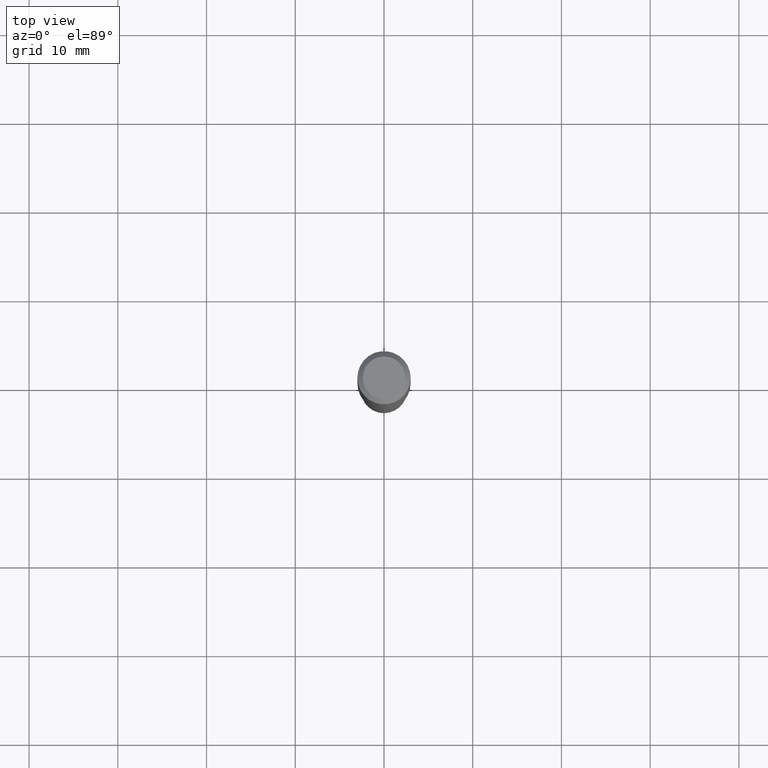
[diagram: clean part render]
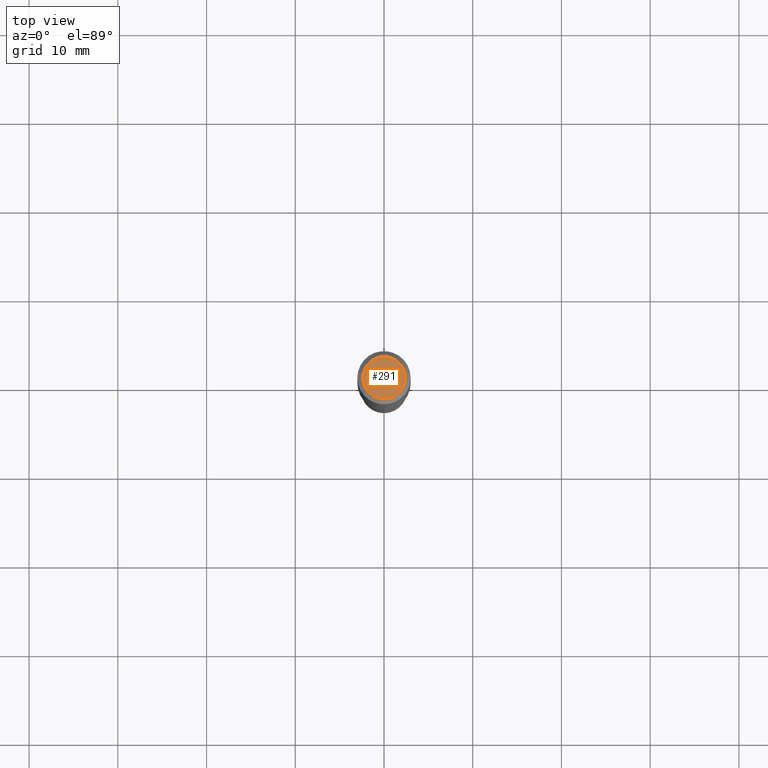
[diagram: same view with one face highlighted and labeled with its STEP entity id]
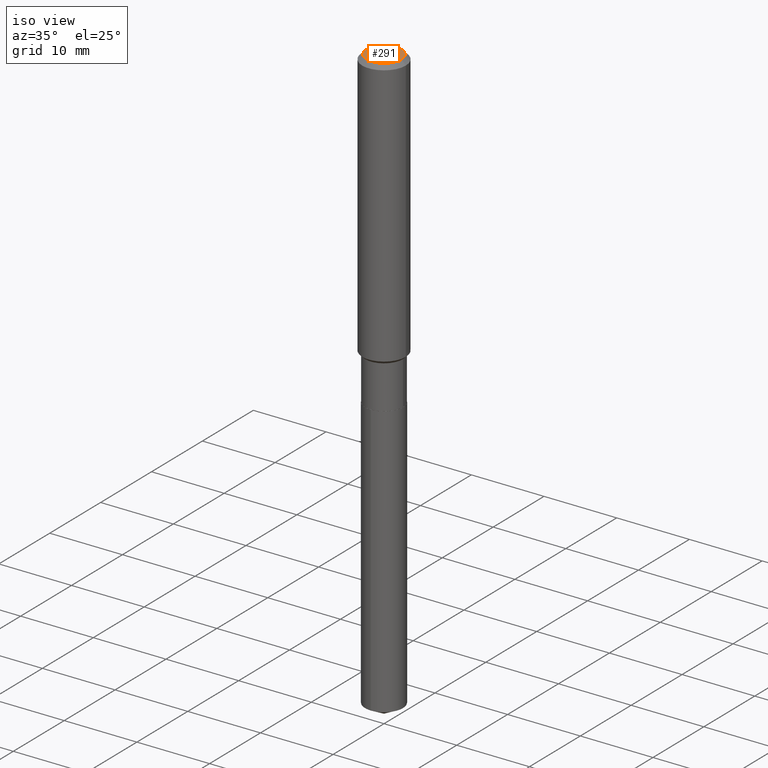
[diagram: same view with one face highlighted and labeled with its STEP entity id]
A machine part, top view. The second image highlights one B-rep face of the part: STEP entity #291.
A second angle (iso view) of the same face is appended — the face is thin or edge-on in the first view.
In plain terms, the highlighted planar face has unit normal (0, -0, -1).
Its self-contained STEP definition (entity closure, byte-faithful):
#20 = VERTEX_POINT ( 'NONE', #314 ) ;
#25 = AXIS2_PLACEMENT_3D ( 'NONE', #160, #285, #323 ) ;
#27 = ORIENTED_EDGE ( 'NONE', *, *, #296, .T. ) ;
#74 = CARTESIAN_POINT ( 'NONE',  ( 4.716267017698007905E-46, -6.733579360998555036E-32, -1.928573779297252010E-17 ) ) ;
#129 = DIRECTION ( 'NONE',  ( -2.445468806185136597E-29, 3.491481338843145583E-15, 1.000000000000000000 ) ) ;
#132 = CARTESIAN_POINT ( 'NONE',  ( -0.09447999999999998066, 7.009847083995354710E-16, -1.928573779297727792E-17 ) ) ;
#156 = PLANE ( 'NONE',  #25 ) ;
#158 = FACE_OUTER_BOUND ( 'NONE', #319, .T. ) ;
#160 = CARTESIAN_POINT ( 'NONE',  ( 2.358133508849003952E-46, -3.366789680499277518E-32, -9.642868896486260050E-18 ) ) ;
#163 = AXIS2_PLACEMENT_3D ( 'NONE', #486, #246, #383 ) ;
#229 = VERTEX_POINT ( 'NONE', #132 ) ;
#246 = DIRECTION ( 'NONE',  ( -2.445468806185136597E-29, 3.491481338843145583E-15, 1.000000000000000000 ) ) ;
#285 = DIRECTION ( 'NONE',  ( 2.438088387897960049E-29, -3.491481338843145188E-15, -1.000000000000000000 ) ) ;
#291 = ADVANCED_FACE ( 'NONE', ( #158 ), #156, .F. ) ;
#296 = EDGE_CURVE ( 'NONE', #229, #20, #339, .T. ) ;
#314 = CARTESIAN_POINT ( 'NONE',  ( 0.09447999999999998066, -7.704367267948738690E-16, -1.928573779296752193E-17 ) ) ;
#316 = DIRECTION ( 'NONE',  ( 1.000000000000000000, -6.982962677686267499E-15, 4.875432709231658792E-29 ) ) ;
#318 = AXIS2_PLACEMENT_3D ( 'NONE', #74, #129, #316 ) ;
#319 = EDGE_LOOP ( 'NONE', ( #27, #399 ) ) ;
#323 = DIRECTION ( 'NONE',  ( -1.000000000000000000, 6.982962677686265922E-15, -4.876176775795935793E-29 ) ) ;
#328 = CIRCLE ( 'NONE', #163, 0.09447999999999998066 ) ;
#339 = CIRCLE ( 'NONE', #318, 0.09447999999999998066 ) ;
#342 = EDGE_CURVE ( 'NONE', #20, #229, #328, .T. ) ;
#383 = DIRECTION ( 'NONE',  ( 1.000000000000000000, -6.982962677686267499E-15, 4.875432709231658792E-29 ) ) ;
#399 = ORIENTED_EDGE ( 'NONE', *, *, #342, .T. ) ;
#486 = CARTESIAN_POINT ( 'NONE',  ( 4.716267017698007905E-46, -6.733579360998555036E-32, -1.928573779297252010E-17 ) ) ;